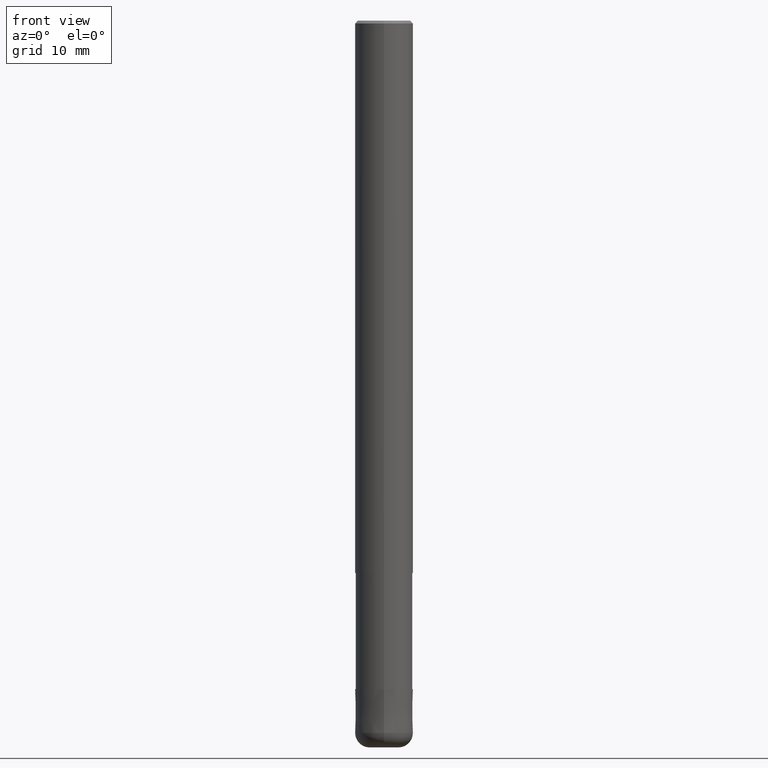
[diagram: clean part render]
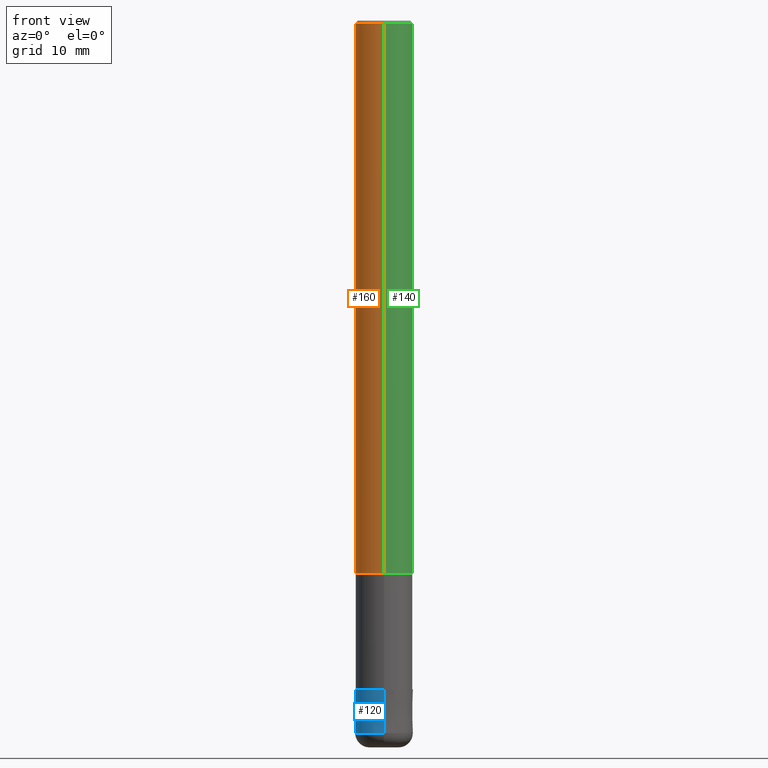
[diagram: same view with three faces highlighted in distinct colors, each labeled with its STEP entity id]
A machine part, front view with three faces highlighted in distinct colors.
Their STEP definitions:

[orange] entity #160 — the highlighted cylindrical surface (edge-blend (fillet) strip) has radius 4 mm, axis along (-0, -0, 1).
#94=EDGE_CURVE('',#158,#198,#231,.T.);
#138=EDGE_CURVE('',#142,#158,#281,.T.);
#142=VERTEX_POINT('',#286);
#144=VERTEX_POINT('',#288);
#156=EDGE_CURVE('',#198,#144,#300,.T.);
#158=VERTEX_POINT('',#302);
#160=ADVANCED_FACE('',(#304),#305,.T.);
#164=EDGE_CURVE('',#142,#144,#309,.T.);
#198=VERTEX_POINT('',#347);
#231=CIRCLE('',#377,4.0);
#281=LINE('',#442,#443);
#286=CARTESIAN_POINT('',(4.89842541528951E-016,-4.0,-76.0));
#288=CARTESIAN_POINT('',(0.0,4.0,-76.0));
#300=LINE('',#467,#468);
#302=CARTESIAN_POINT('',(4.89842541528951E-016,-4.0,-0.400000000000006));
#304=FACE_OUTER_BOUND('',#472,.T.);
#305=CYLINDRICAL_SURFACE('',#473,4.0);
#309=CIRCLE('',#478,4.0);
#347=CARTESIAN_POINT('',(0.0,4.0,-0.400000000000006));
#377=AXIS2_PLACEMENT_3D('',#540,#541,#542);
#442=CARTESIAN_POINT('',(4.89842541528951E-016,-4.0,-38.2));
#443=VECTOR('',#617,1.0);
#467=CARTESIAN_POINT('',(-4.89842541528951E-016,4.0,-38.2));
#468=VECTOR('',#633,1.0);
#472=EDGE_LOOP('',(#635,#636,#637,#638));
#473=AXIS2_PLACEMENT_3D('',#639,#640,#641);
#478=AXIS2_PLACEMENT_3D('',#642,#643,#644);
#540=CARTESIAN_POINT('',(0.0,0.0,-0.400000000000006));
#541=DIRECTION('',(0.0,0.0,-1.0));
#542=DIRECTION('',(0.0,1.0,0.0));
#617=DIRECTION('',(-0.0,-0.0,1.0));
#633=DIRECTION('',(0.0,0.0,-1.0));
#635=ORIENTED_EDGE('',*,*,#156,.T.);
#636=ORIENTED_EDGE('',*,*,#164,.F.);
#637=ORIENTED_EDGE('',*,*,#138,.T.);
#638=ORIENTED_EDGE('',*,*,#94,.T.);
#639=CARTESIAN_POINT('',(0.0,0.0,-38.2));
#640=DIRECTION('',(-0.0,-0.0,1.0));
#641=DIRECTION('',(0.0,1.0,0.0));
#642=CARTESIAN_POINT('',(0.0,0.0,-76.0));
#643=DIRECTION('',(0.0,0.0,-1.0));
#644=DIRECTION('',(0.0,1.0,0.0));

[blue] entity #120 — the highlighted conical surface has half-angle 0.001 deg.
#92=VERTEX_POINT('',#229);
#116=EDGE_CURVE('',#124,#176,#257,.T.);
#120=ADVANCED_FACE('',(#262),#263,.T.);
#124=VERTEX_POINT('',#267);
#126=EDGE_CURVE('',#92,#176,#269,.T.);
#128=EDGE_CURVE('',#124,#192,#271,.T.);
#132=EDGE_CURVE('',#192,#92,#275,.T.);
#176=VERTEX_POINT('',#322);
#192=VERTEX_POINT('',#341);
#229=CARTESIAN_POINT('',(0.0,3.9999,-92.0));
#257=CIRCLE('',#409,4.0);
#262=FACE_OUTER_BOUND('',#414,.T.);
#263=CONICAL_SURFACE('',#415,3.99995,1.66666666651586E-005);
#267=CARTESIAN_POINT('',(4.89842541528951E-016,-4.0,-98.0));
#269=LINE('',#422,#423);
#271=LINE('',#426,#427);
#275=CIRCLE('',#433,3.9999);
#322=CARTESIAN_POINT('',(0.0,4.0,-98.0));
#341=CARTESIAN_POINT('',(4.89830295465413E-016,-3.9999,-92.0));
#409=AXIS2_PLACEMENT_3D('',#584,#585,#586);
#414=EDGE_LOOP('',(#596,#597,#598,#599));
#415=AXIS2_PLACEMENT_3D('',#600,#601,#602);
#422=CARTESIAN_POINT('',(-4.89836418497182E-016,3.99995,-95.0));
#423=VECTOR('',#603,1.0);
#426=CARTESIAN_POINT('',(4.89836418497182E-016,-3.99995,-95.0));
#427=VECTOR('',#604,1.0);
#433=AXIS2_PLACEMENT_3D('',#608,#609,#610);
#584=CARTESIAN_POINT('',(0.0,0.0,-98.0));
#585=DIRECTION('',(0.0,0.0,-1.0));
#586=DIRECTION('',(0.0,1.0,0.0));
#596=ORIENTED_EDGE('',*,*,#126,.T.);
#597=ORIENTED_EDGE('',*,*,#116,.F.);
#598=ORIENTED_EDGE('',*,*,#128,.T.);
#599=ORIENTED_EDGE('',*,*,#132,.T.);
#600=CARTESIAN_POINT('',(0.0,0.0,-95.0));
#601=DIRECTION('',(0.0,-0.0,-1.0));
#602=DIRECTION('',(0.0,1.0,0.0));
#603=DIRECTION('',(-2.04101058942479E-021,1.6666666664387E-005,-0.999999999861111));
#604=DIRECTION('',(-2.04101058942479E-021,1.6666666664387E-005,0.999999999861111));
#608=CARTESIAN_POINT('',(0.0,0.0,-92.0));
#609=DIRECTION('',(0.0,0.0,-1.0));
#610=DIRECTION('',(0.0,1.0,0.0));

[green] entity #140 — the highlighted cylindrical surface (edge-blend (fillet) strip) has radius 4 mm, axis along (-0, -0, 1).
#138=EDGE_CURVE('',#142,#158,#281,.T.);
#140=ADVANCED_FACE('',(#283),#284,.T.);
#142=VERTEX_POINT('',#286);
#144=VERTEX_POINT('',#288);
#156=EDGE_CURVE('',#198,#144,#300,.T.);
#158=VERTEX_POINT('',#302);
#168=EDGE_CURVE('',#198,#158,#313,.T.);
#198=VERTEX_POINT('',#347);
#206=EDGE_CURVE('',#144,#142,#357,.T.);
#281=LINE('',#442,#443);
#283=FACE_OUTER_BOUND('',#445,.T.);
#284=CYLINDRICAL_SURFACE('',#446,4.0);
#286=CARTESIAN_POINT('',(4.89842541528951E-016,-4.0,-76.0));
#288=CARTESIAN_POINT('',(0.0,4.0,-76.0));
#300=LINE('',#467,#468);
#302=CARTESIAN_POINT('',(4.89842541528951E-016,-4.0,-0.400000000000006));
#313=CIRCLE('',#484,4.0);
#347=CARTESIAN_POINT('',(0.0,4.0,-0.400000000000006));
#357=CIRCLE('',#534,4.0);
#442=CARTESIAN_POINT('',(4.89842541528951E-016,-4.0,-38.2));
#443=VECTOR('',#617,1.0);
#445=EDGE_LOOP('',(#619,#620,#621,#622));
#446=AXIS2_PLACEMENT_3D('',#623,#624,#625);
#467=CARTESIAN_POINT('',(-4.89842541528951E-016,4.0,-38.2));
#468=VECTOR('',#633,1.0);
#484=AXIS2_PLACEMENT_3D('',#648,#649,#650);
#534=AXIS2_PLACEMENT_3D('',#705,#706,#707);
#617=DIRECTION('',(-0.0,-0.0,1.0));
#619=ORIENTED_EDGE('',*,*,#156,.F.);
#620=ORIENTED_EDGE('',*,*,#168,.T.);
#621=ORIENTED_EDGE('',*,*,#138,.F.);
#622=ORIENTED_EDGE('',*,*,#206,.F.);
#623=CARTESIAN_POINT('',(0.0,0.0,-38.2));
#624=DIRECTION('',(-0.0,-0.0,1.0));
#625=DIRECTION('',(0.0,1.0,0.0));
#633=DIRECTION('',(0.0,0.0,-1.0));
#648=CARTESIAN_POINT('',(0.0,0.0,-0.400000000000006));
#649=DIRECTION('',(0.0,0.0,-1.0));
#650=DIRECTION('',(0.0,1.0,0.0));
#705=CARTESIAN_POINT('',(0.0,0.0,-76.0));
#706=DIRECTION('',(0.0,0.0,-1.0));
#707=DIRECTION('',(0.0,1.0,0.0));